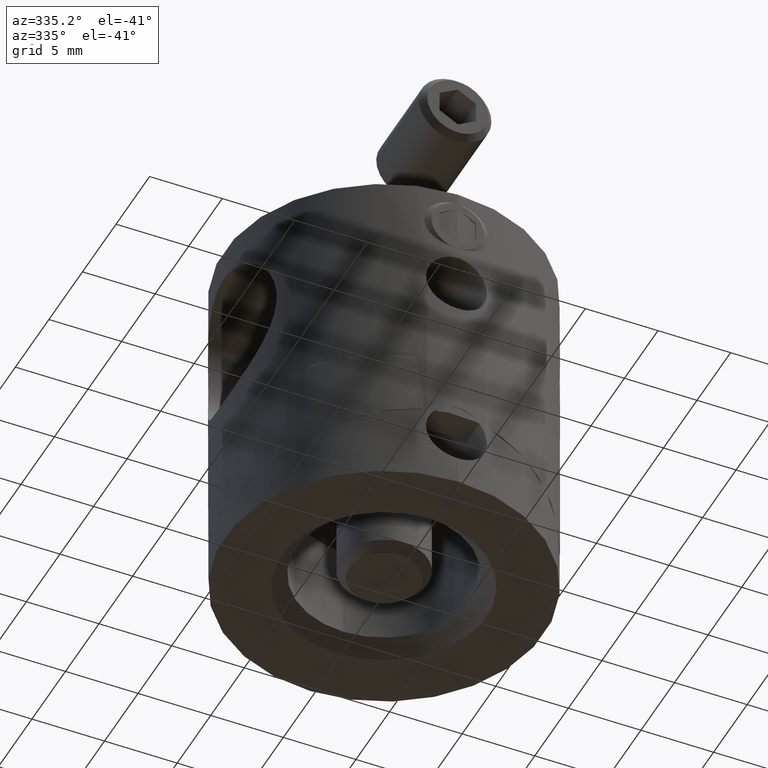
[diagram: clean part render]
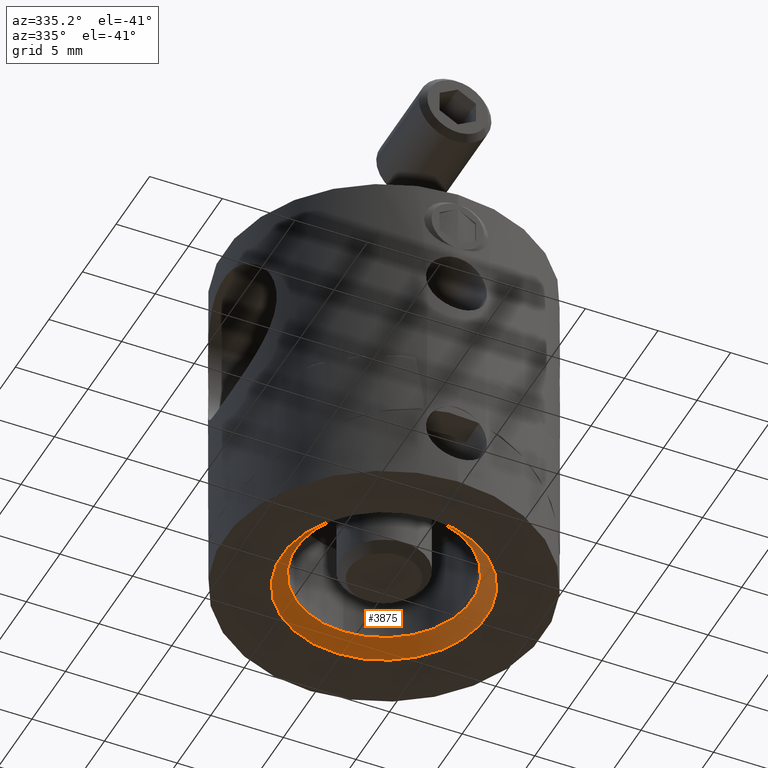
[diagram: same view with one face highlighted and labeled with its STEP entity id]
A machine part, auxiliary view. The second image highlights one B-rep face of the part: STEP entity #3875.
In plain terms, the highlighted conical surface has half-angle 45 deg.
Its self-contained STEP definition (entity closure, byte-faithful):
#209 = EDGE_CURVE ( 'NONE', #3743, #3743, #4524, .T. ) ;
#538 = DIRECTION ( 'NONE',  ( -0.000000000000000000, 1.081595917263183534E-17, 1.000000000000000000 ) ) ;
#574 = EDGE_LOOP ( 'NONE', ( #2024 ) ) ;
#1412 = EDGE_CURVE ( 'NONE', #1420, #1420, #1470, .T. ) ;
#1420 = VERTEX_POINT ( 'NONE', #6068 ) ;
#1470 = CIRCLE ( 'NONE', #5576, 7.049999999999996270 ) ;
#1514 = FACE_BOUND ( 'NONE', #2369, .T. ) ;
#1658 = AXIS2_PLACEMENT_3D ( 'NONE', #2965, #3968, #5360 ) ;
#1901 = DIRECTION ( 'NONE',  ( 0.000000000000000000, -1.000000000000000000, 0.000000000000000000 ) ) ;
#1946 = CARTESIAN_POINT ( 'NONE',  ( 0.000000000000000000, 1.773327923018335186E-31, -13.00000000000000178 ) ) ;
#2004 = ORIENTED_EDGE ( 'NONE', *, *, #209, .F. ) ;
#2024 = ORIENTED_EDGE ( 'NONE', *, *, #1412, .F. ) ;
#2360 = CARTESIAN_POINT ( 'NONE',  ( 0.000000000000000000, -1.221035599223778392E-16, -12.00000000000001243 ) ) ;
#2369 = EDGE_LOOP ( 'NONE', ( #2004 ) ) ;
#2965 = CARTESIAN_POINT ( 'NONE',  ( 0.000000000000000000, -1.221035599223777406E-16, -12.00000000000001243 ) ) ;
#3330 = DIRECTION ( 'NONE',  ( 0.000000000000000000, 1.000000000000000000, 0.000000000000000000 ) ) ;
#3688 = CONICAL_SURFACE ( 'NONE', #5239, 6.049999999999999822, 0.7853981633974517207 ) ;
#3743 = VERTEX_POINT ( 'NONE', #4839 ) ;
#3875 = ADVANCED_FACE ( 'NONE', ( #5159, #1514 ), #3688, .F. ) ;
#3968 = DIRECTION ( 'NONE',  ( 0.000000000000000000, 1.221035599223791951E-16, -1.000000000000000000 ) ) ;
#4524 = CIRCLE ( 'NONE', #1658, 6.049999999999999822 ) ;
#4839 = CARTESIAN_POINT ( 'NONE',  ( 0.000000000000000000, -6.049999999999999822, -12.00000000000001243 ) ) ;
#5159 = FACE_OUTER_BOUND ( 'NONE', #574, .T. ) ;
#5239 = AXIS2_PLACEMENT_3D ( 'NONE', #2360, #5716, #3330 ) ;
#5360 = DIRECTION ( 'NONE',  ( 0.000000000000000000, -1.000000000000000000, 0.000000000000000000 ) ) ;
#5576 = AXIS2_PLACEMENT_3D ( 'NONE', #1946, #538, #1901 ) ;
#5716 = DIRECTION ( 'NONE',  ( 0.000000000000000000, 1.221035599223791951E-16, -1.000000000000000000 ) ) ;
#6068 = CARTESIAN_POINT ( 'NONE',  ( 0.000000000000000000, -7.049999999999996270, -13.00000000000000178 ) ) ;